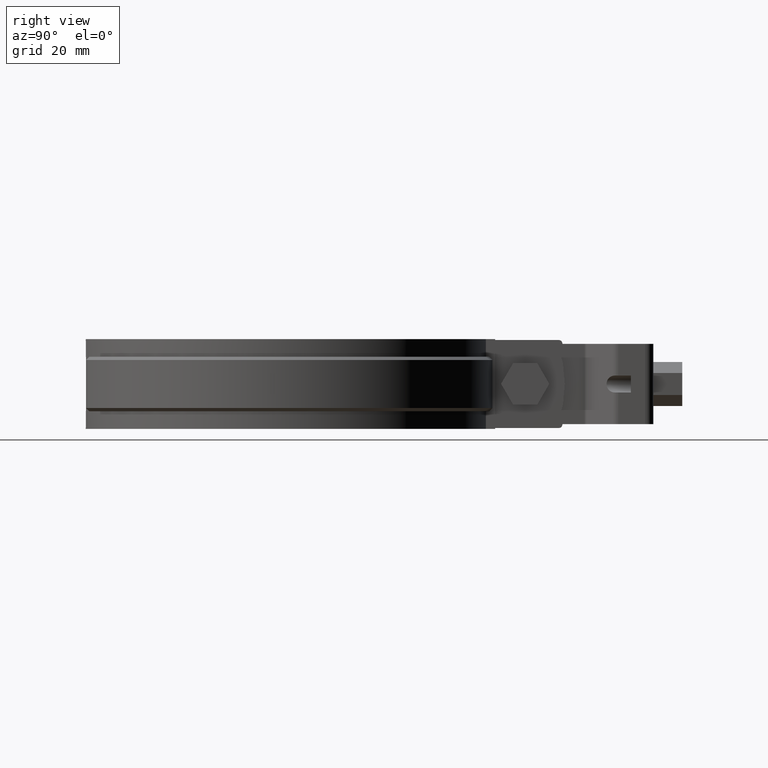
[diagram: clean part render]
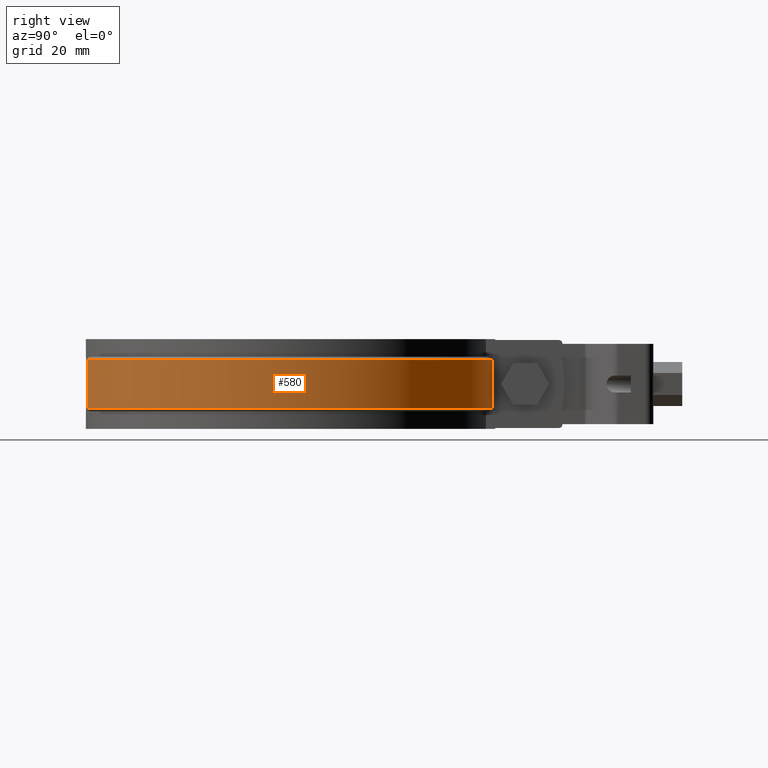
[diagram: same view with one face highlighted and labeled with its STEP entity id]
A machine part, right view. The second image highlights one B-rep face of the part: STEP entity #580.
In plain terms, the highlighted cylindrical surface (partial cylindrical patch) has radius 64.5 mm, axis along (0, 0, -1).
Its self-contained STEP definition (entity closure, byte-faithful):
#580 = ADVANCED_FACE( '', ( #1055 ), #1056, .T. );
#1055 = FACE_OUTER_BOUND( '', #2343, .T. );
#1056 = CYLINDRICAL_SURFACE( '', #2344, 64.5000000000000 );
#2343 = EDGE_LOOP( '', ( #4879, #4880, #4881, #4882 ) );
#2344 = AXIS2_PLACEMENT_3D( '', #4883, #4884, #4885 );
#4879 = ORIENTED_EDGE( '', *, *, #6985, .T. );
#4880 = ORIENTED_EDGE( '', *, *, #7019, .T. );
#4881 = ORIENTED_EDGE( '', *, *, #7088, .F. );
#4882 = ORIENTED_EDGE( '', *, *, #6977, .T. );
#4883 = CARTESIAN_POINT( '', ( 8.67361737988404E-016, 1.38777878078145E-014, -8.50000000000000 ) );
#4884 = DIRECTION( '', ( 0.000000000000000, 0.000000000000000, -1.00000000000000 ) );
#4885 = DIRECTION( '', ( 0.0775193798449611, 0.996990845368428, 0.000000000000000 ) );
#6977 = EDGE_CURVE( '', #8106, #8103, #8107, .T. );
#6985 = EDGE_CURVE( '', #8103, #8119, #8121, .T. );
#7019 = EDGE_CURVE( '', #8119, #8178, #8180, .F. );
#7088 = EDGE_CURVE( '', #8106, #8178, #8283, .T. );
#8103 = VERTEX_POINT( '', #11838 );
#8106 = VERTEX_POINT( '', #11844 );
#8107 = CIRCLE( '', #11845, 64.5000000000000 );
#8119 = VERTEX_POINT( '', #11862 );
#8121 = LINE( '', #11867, #11868 );
#8178 = VERTEX_POINT( '', #11966 );
#8180 = CIRCLE( '', #11969, 64.5000000000000 );
#8283 = LINE( '', #12139, #12140 );
#11838 = CARTESIAN_POINT( '', ( 6.00000000000000, 64.2203238858229, -7.50000000000000 ) );
#11844 = CARTESIAN_POINT( '', ( 18.3698391239513, -61.8287878787879, -7.50000000000000 ) );
#11845 = AXIS2_PLACEMENT_3D( '', #13892, #13893, #13894 );
#11862 = CARTESIAN_POINT( '', ( 6.00000000000000, 64.2203238858229, 7.50000000000000 ) );
#11867 = CARTESIAN_POINT( '', ( 6.00000000000000, 64.2203238858229, -8.50000000000000 ) );
#11868 = VECTOR( '', #13903, 1000.00000000000 );
#11966 = CARTESIAN_POINT( '', ( 18.3698391239513, -61.8287878787879, 7.50000000000000 ) );
#11969 = AXIS2_PLACEMENT_3D( '', #13954, #13955, #13956 );
#12139 = CARTESIAN_POINT( '', ( 18.3698391239513, -61.8287878787879, -8.50000000000000 ) );
#12140 = VECTOR( '', #14066, 1000.00000000000 );
#13892 = CARTESIAN_POINT( '', ( 8.67361737988404E-016, 1.38777878078145E-014, -7.50000000000000 ) );
#13893 = DIRECTION( '', ( 0.000000000000000, 0.000000000000000, 1.00000000000000 ) );
#13894 = DIRECTION( '', ( 1.00000000000000, 0.000000000000000, 0.000000000000000 ) );
#13903 = DIRECTION( '', ( 0.000000000000000, 0.000000000000000, 1.00000000000000 ) );
#13954 = CARTESIAN_POINT( '', ( 8.67361737988404E-016, 1.38777878078145E-014, 7.50000000000000 ) );
#13955 = DIRECTION( '', ( 0.000000000000000, 0.000000000000000, 1.00000000000000 ) );
#13956 = DIRECTION( '', ( 1.00000000000000, 0.000000000000000, 0.000000000000000 ) );
#14066 = DIRECTION( '', ( 0.000000000000000, 0.000000000000000, 1.00000000000000 ) );